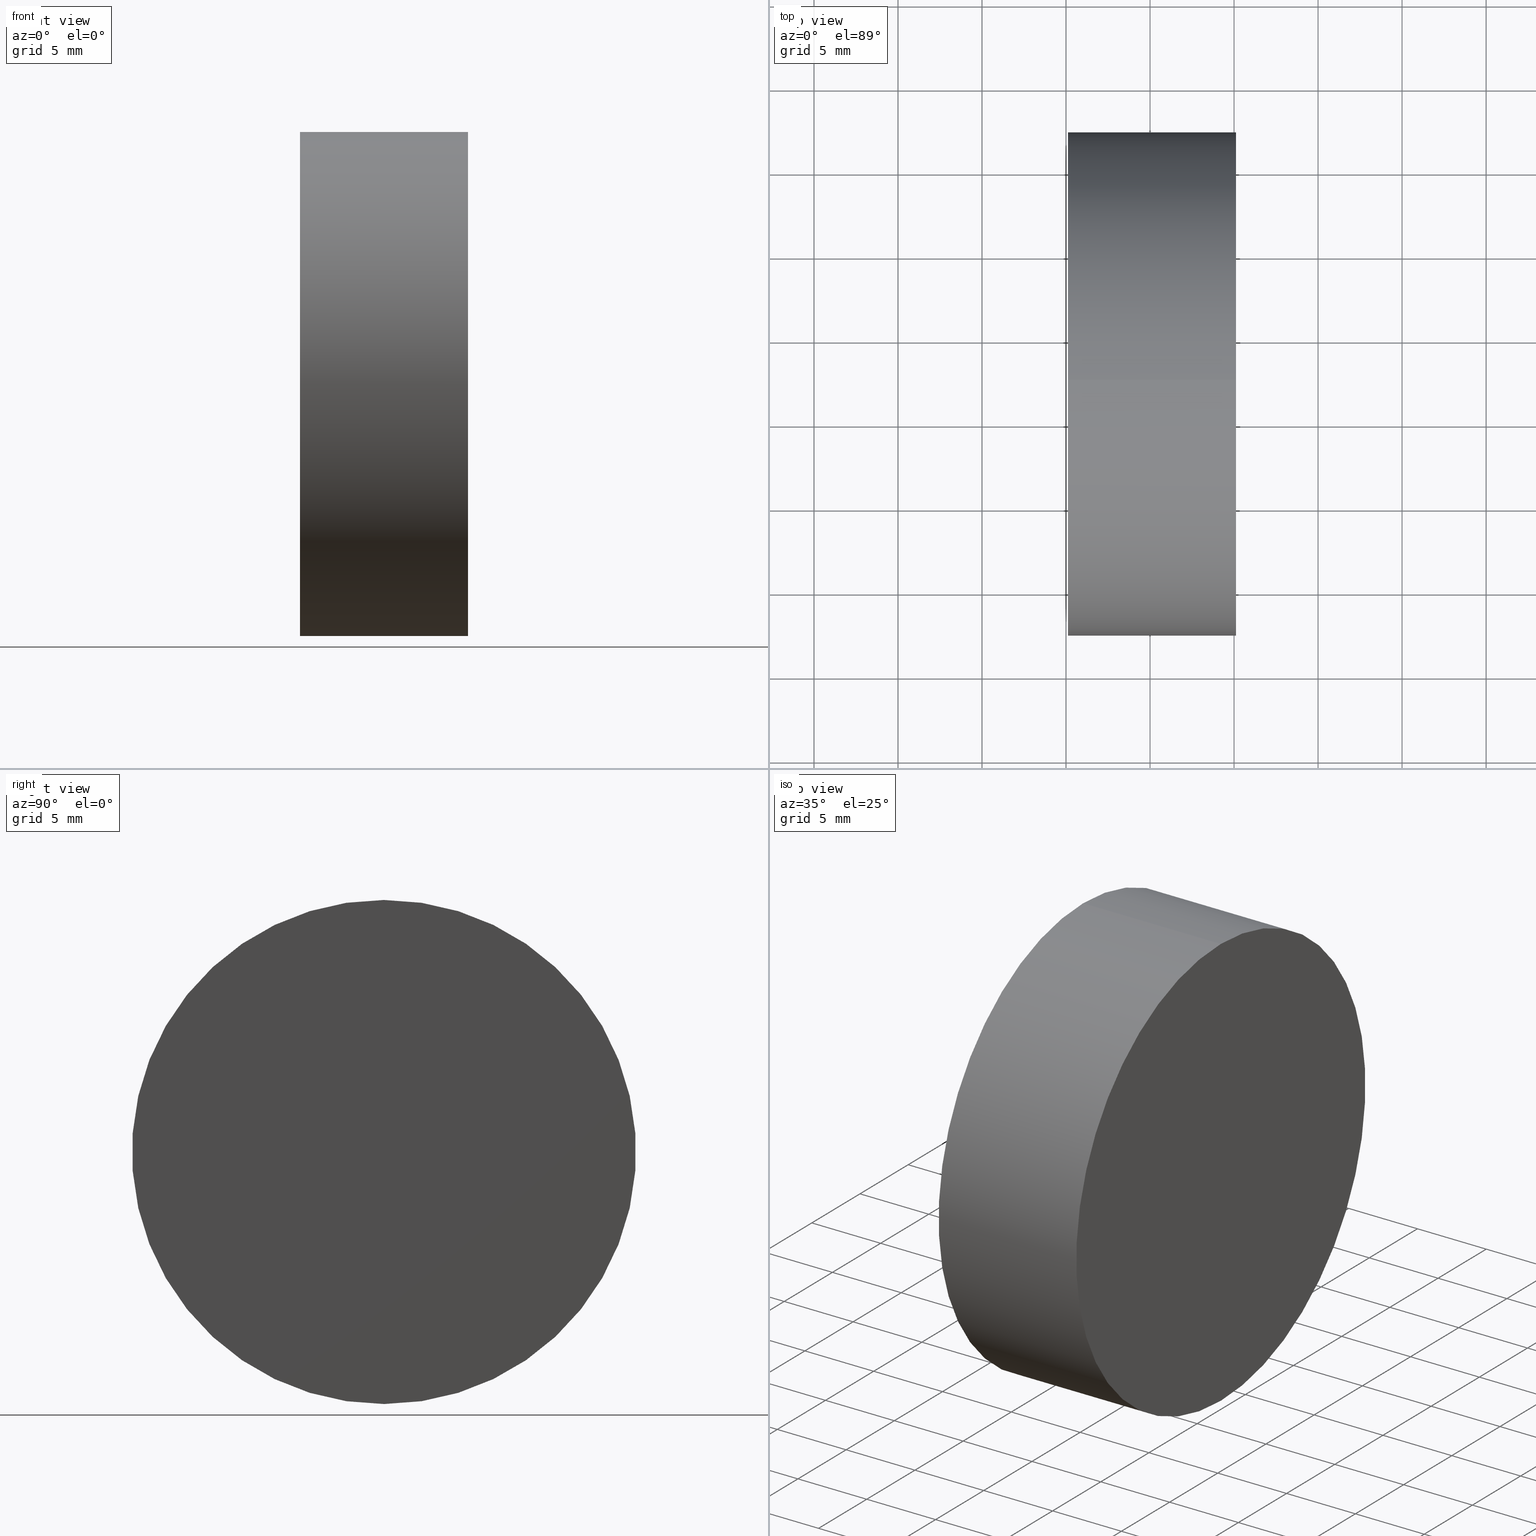
[diagram: canonical four-view strip — front | top / right | iso, engineering-drawing reading convention]
A machine part, canonical four-view strip (front | top / right | iso — engineering-drawing reading convention). The complete STEP part file that produces these views, byte-faithful:
ISO-10303-21;
HEADER;
FILE_DESCRIPTION (( 'STEP AP214' ),
    '1' );
FILE_NAME ('260074.STEP',
    '2019-07-16T03:39:00',
    ( '' ),
    ( '' ),
    'SwSTEP 2.0',
    'SolidWorks 2016',
    '' );
FILE_SCHEMA (( 'AUTOMOTIVE_DESIGN' ));
ENDSEC;

DATA;
#1 = CARTESIAN_POINT ( 'NONE',  ( 254.0008019926160300, 77.29317934901541800, 15.00000000000000000 ) ) ;
#2 = FILL_AREA_STYLE_COLOUR ( '', #11 ) ;
#3 = CARTESIAN_POINT ( 'NONE',  ( 254.0008019926160300, 77.29317934901541800, 0.0000000000000000000 ) ) ;
#4 = EDGE_LOOP ( 'NONE', ( #73, #9, #53, #97 ) ) ;
#5 = AXIS2_PLACEMENT_3D ( 'NONE', #106, #115, #88 ) ;
#6 =( LENGTH_UNIT ( ) NAMED_UNIT ( * ) SI_UNIT ( .MILLI., .METRE. ) );
#7 = APPLICATION_CONTEXT ( 'automotive_design' ) ;
#8 = STYLED_ITEM ( 'NONE', ( #85 ), #122 ) ;
#9 = ORIENTED_EDGE ( 'NONE', *, *, #25, .T. ) ;
#10 = PRODUCT_DEFINITION_FORMATION_WITH_SPECIFIED_SOURCE ( '�κ�', '', #133, .NOT_KNOWN. ) ;
#11 = COLOUR_RGB ( '',1.000000000000000000, 1.000000000000000000, 1.000000000000000000 ) ;
#12 = AXIS2_PLACEMENT_3D ( 'NONE', #105, #43, #80 ) ;
#13 = CARTESIAN_POINT ( 'NONE',  ( 260.1163036661670800, 77.29317934901541800, 0.0000000000000000000 ) ) ;
#14 = DIRECTION ( 'NONE',  ( 0.0000000000000000000, 0.0000000000000000000, 1.000000000000000000 ) ) ;
#15 = ORIENTED_EDGE ( 'NONE', *, *, #30, .F. ) ;
#16 = PRESENTATION_LAYER_ASSIGNMENT (  '', '', ( #8 ) ) ;
#17 = CARTESIAN_POINT ( 'NONE',  ( 270.1163036661670300, 77.29317934901541800, 0.0000000000000000000 ) ) ;
#18 = MANIFOLD_SOLID_BREP ( '��ת1', #117 ) ;
#19 = PLANE ( 'NONE',  #38 ) ;
#20 = CARTESIAN_POINT ( 'NONE',  ( 270.1163036661670300, 77.29317934901541800, 0.0000000000000000000 ) ) ;
#21 = DIRECTION ( 'NONE',  ( -1.000000000000000000, 0.0000000000000000000, -0.0000000000000000000 ) ) ;
#22 = CIRCLE ( 'NONE', #29, 15.00000000000000000 ) ;
#23 = ORIENTED_EDGE ( 'NONE', *, *, #87, .T. ) ;
#24 = CIRCLE ( 'NONE', #12, 15.00000000000000000 ) ;
#25 = EDGE_CURVE ( 'NONE', #130, #63, #47, .T. ) ;
#26 =( NAMED_UNIT ( * ) PLANE_ANGLE_UNIT ( ) SI_UNIT ( $, .RADIAN. ) );
#27 = CARTESIAN_POINT ( 'NONE',  ( 270.1163036661670300, 77.29317934901541800, -15.00000000000000000 ) ) ;
#28 = VECTOR ( 'NONE', #132, 1000.000000000000000 ) ;
#29 = AXIS2_PLACEMENT_3D ( 'NONE', #128, #89, #107 ) ;
#30 = EDGE_CURVE ( 'NONE', #63, #41, #104, .T. ) ;
#31 = COLOUR_RGB ( '',1.000000000000000000, 1.000000000000000000, 1.000000000000000000 ) ;
#32 = CARTESIAN_POINT ( 'NONE',  ( 254.0008019926160300, 77.29317934901541800, -15.00000000000000000 ) ) ;
#33 =( NAMED_UNIT ( * ) SI_UNIT ( $, .STERADIAN. ) SOLID_ANGLE_UNIT ( ) );
#34 = SURFACE_SIDE_STYLE ('',( #70 ) ) ;
#35 = ORIENTED_EDGE ( 'NONE', *, *, #49, .T. ) ;
#36 = DIRECTION ( 'NONE',  ( -1.000000000000000000, -0.0000000000000000000, -0.0000000000000000000 ) ) ;
#37 = FILL_AREA_STYLE ('',( #64 ) ) ;
#38 = AXIS2_PLACEMENT_3D ( 'NONE', #13, #39, #114 ) ;
#39 = DIRECTION ( 'NONE',  ( 1.000000000000000000, 0.0000000000000000000, 0.0000000000000000000 ) ) ;
#40 = DIRECTION ( 'NONE',  ( -1.000000000000000000, -0.0000000000000000000, -0.0000000000000000000 ) ) ;
#41 = VERTEX_POINT ( 'NONE', #92 ) ;
#42 = CARTESIAN_POINT ( 'NONE',  ( 260.1163036661670800, 77.29317934901541800, -15.00000000000000000 ) ) ;
#43 = DIRECTION ( 'NONE',  ( -1.000000000000000000, -0.0000000000000000000, -0.0000000000000000000 ) ) ;
#44 = VECTOR ( 'NONE', #40, 1000.000000000000000 ) ;
#45 = EDGE_LOOP ( 'NONE', ( #23, #139 ) ) ;
#46 = UNCERTAINTY_MEASURE_WITH_UNIT (LENGTH_MEASURE( 1.000000000000000100E-005 ), #52, 'distance_accuracy_value', 'NONE');
#47 = LINE ( 'NONE', #32, #44 ) ;
#48 = MECHANICAL_DESIGN_GEOMETRIC_PRESENTATION_REPRESENTATION (  '', ( #8 ), #102 ) ;
#49 = EDGE_CURVE ( 'NONE', #130, #123, #24, .T. ) ;
#50 = FILL_AREA_STYLE ('',( #2 ) ) ;
#51 = ADVANCED_FACE ( 'NONE', ( #138 ), #19, .F. ) ;
#52 =( LENGTH_UNIT ( ) NAMED_UNIT ( * ) SI_UNIT ( .MILLI., .METRE. ) );
#53 = ORIENTED_EDGE ( 'NONE', *, *, #87, .F. ) ;
#54 =( NAMED_UNIT ( * ) SI_UNIT ( $, .STERADIAN. ) SOLID_ANGLE_UNIT ( ) );
#55 = DIRECTION ( 'NONE',  ( -1.000000000000000000, -0.0000000000000000000, -0.0000000000000000000 ) ) ;
#56 = DIRECTION ( 'NONE',  ( 1.000000000000000000, 0.0000000000000000000, 0.0000000000000000000 ) ) ;
#57 = SURFACE_STYLE_FILL_AREA ( #37 ) ;
#58 = AXIS2_PLACEMENT_3D ( 'NONE', #20, #55, #95 ) ;
#59 = ORIENTED_EDGE ( 'NONE', *, *, #140, .F. ) ;
#60 = PRODUCT_DEFINITION_SHAPE ( 'NONE', 'NONE',  #99 ) ;
#61 = CARTESIAN_POINT ( 'NONE',  ( 0.0000000000000000000, 0.0000000000000000000, 0.0000000000000000000 ) ) ;
#62 = DIRECTION ( 'NONE',  ( 0.0000000000000000000, 0.0000000000000000000, 1.000000000000000000 ) ) ;
#63 = VERTEX_POINT ( 'NONE', #42 ) ;
#64 = FILL_AREA_STYLE_COLOUR ( '', #31 ) ;
#65 =( NAMED_UNIT ( * ) PLANE_ANGLE_UNIT ( ) SI_UNIT ( $, .RADIAN. ) );
#66 = APPLICATION_PROTOCOL_DEFINITION ( 'draft international standard', 'automotive_design', 1998, #137 ) ;
#67 = PRESENTATION_STYLE_ASSIGNMENT (( #83 ) ) ;
#68 =( GEOMETRIC_REPRESENTATION_CONTEXT ( 3 ) GLOBAL_UNCERTAINTY_ASSIGNED_CONTEXT ( ( #82 ) ) GLOBAL_UNIT_ASSIGNED_CONTEXT ( ( #111, #135, #96 ) ) REPRESENTATION_CONTEXT ( 'NONE', 'WORKASPACE' ) );
#69 = LINE ( 'NONE', #1, #28 ) ;
#70 = SURFACE_STYLE_FILL_AREA ( #50 ) ;
#71 = CYLINDRICAL_SURFACE ( 'NONE', #72, 15.00000000000000000 ) ;
#72 = AXIS2_PLACEMENT_3D ( 'NONE', #3, #36, #14 ) ;
#73 = ORIENTED_EDGE ( 'NONE', *, *, #140, .T. ) ;
#74 = AXIS2_PLACEMENT_3D ( 'NONE', #91, #129, #62 ) ;
#75 = CARTESIAN_POINT ( 'NONE',  ( 270.1163036661670300, 77.29317934901541800, 15.00000000000000000 ) ) ;
#76 = FACE_OUTER_BOUND ( 'NONE', #4, .T. ) ;
#77 = SURFACE_SIDE_STYLE ('',( #57 ) ) ;
#78 = ORIENTED_EDGE ( 'NONE', *, *, #25, .F. ) ;
#79 = PRODUCT_RELATED_PRODUCT_CATEGORY ( 'part', '', ( #133 ) ) ;
#80 = DIRECTION ( 'NONE',  ( 0.0000000000000000000, 0.0000000000000000000, 1.000000000000000000 ) ) ;
#81 = ADVANCED_FACE ( 'NONE', ( #76 ), #71, .T. ) ;
#82 = UNCERTAINTY_MEASURE_WITH_UNIT (LENGTH_MEASURE( 1.000000000000000100E-005 ), #111, 'distance_accuracy_value', 'NONE');
#83 = SURFACE_STYLE_USAGE ( .BOTH. , #34 ) ;
#84 = ORIENTED_EDGE ( 'NONE', *, *, #49, .F. ) ;
#85 = PRESENTATION_STYLE_ASSIGNMENT (( #110 ) ) ;
#86 = EDGE_LOOP ( 'NONE', ( #59, #84 ) ) ;
#87 = EDGE_CURVE ( 'NONE', #41, #63, #22, .T. ) ;
#88 = DIRECTION ( 'NONE',  ( 0.0000000000000000000, 0.0000000000000000000, 1.000000000000000000 ) ) ;
#89 = DIRECTION ( 'NONE',  ( -1.000000000000000000, -0.0000000000000000000, -0.0000000000000000000 ) ) ;
#90 = UNCERTAINTY_MEASURE_WITH_UNIT (LENGTH_MEASURE( 1.000000000000000100E-005 ), #6, 'distance_accuracy_value', 'NONE');
#91 = CARTESIAN_POINT ( 'NONE',  ( 254.0008019926160300, 77.29317934901541800, 0.0000000000000000000 ) ) ;
#92 = CARTESIAN_POINT ( 'NONE',  ( 260.1163036661670800, 77.29317934901541800, 15.00000000000000000 ) ) ;
#93 = APPLICATION_PROTOCOL_DEFINITION ( 'draft international standard', 'automotive_design', 1998, #7 ) ;
#94 = CIRCLE ( 'NONE', #58, 15.00000000000000000 ) ;
#95 = DIRECTION ( 'NONE',  ( 0.0000000000000000000, 0.0000000000000000000, 1.000000000000000000 ) ) ;
#96 =( NAMED_UNIT ( * ) SI_UNIT ( $, .STERADIAN. ) SOLID_ANGLE_UNIT ( ) );
#97 = ORIENTED_EDGE ( 'NONE', *, *, #100, .F. ) ;
#98 = FACE_OUTER_BOUND ( 'NONE', #86, .T. ) ;
#99 = PRODUCT_DEFINITION ( 'δ֪', '', #10, #124 ) ;
#100 = EDGE_CURVE ( 'NONE', #123, #41, #69, .T. ) ;
#101 = SHAPE_DEFINITION_REPRESENTATION ( #60, #122 ) ;
#102 =( GEOMETRIC_REPRESENTATION_CONTEXT ( 3 ) GLOBAL_UNCERTAINTY_ASSIGNED_CONTEXT ( ( #90 ) ) GLOBAL_UNIT_ASSIGNED_CONTEXT ( ( #6, #65, #54 ) ) REPRESENTATION_CONTEXT ( 'NONE', 'WORKASPACE' ) );
#103 = STYLED_ITEM ( 'NONE', ( #67 ), #18 ) ;
#104 = CIRCLE ( 'NONE', #5, 15.00000000000000000 ) ;
#105 = CARTESIAN_POINT ( 'NONE',  ( 270.1163036661670300, 77.29317934901541800, 0.0000000000000000000 ) ) ;
#106 = CARTESIAN_POINT ( 'NONE',  ( 260.1163036661670800, 77.29317934901541800, 0.0000000000000000000 ) ) ;
#107 = DIRECTION ( 'NONE',  ( 0.0000000000000000000, 0.0000000000000000000, 1.000000000000000000 ) ) ;
#108 = ADVANCED_FACE ( 'NONE', ( #125 ), #134, .T. ) ;
#109 = EDGE_LOOP ( 'NONE', ( #78, #35, #112, #15 ) ) ;
#110 = SURFACE_STYLE_USAGE ( .BOTH. , #77 ) ;
#111 =( LENGTH_UNIT ( ) NAMED_UNIT ( * ) SI_UNIT ( .MILLI., .METRE. ) );
#112 = ORIENTED_EDGE ( 'NONE', *, *, #100, .T. ) ;
#113 = PRESENTATION_LAYER_ASSIGNMENT (  '', '', ( #103 ) ) ;
#114 = DIRECTION ( 'NONE',  ( 0.0000000000000000000, 0.0000000000000000000, -1.000000000000000000 ) ) ;
#115 = DIRECTION ( 'NONE',  ( -1.000000000000000000, -0.0000000000000000000, -0.0000000000000000000 ) ) ;
#116 = PLANE ( 'NONE',  #126 ) ;
#117 = CLOSED_SHELL ( 'NONE', ( #81, #131, #108, #51 ) ) ;
#118 = MECHANICAL_DESIGN_GEOMETRIC_PRESENTATION_REPRESENTATION (  '', ( #103 ), #127 ) ;
#119 = DIRECTION ( 'NONE',  ( -0.0000000000000000000, 0.0000000000000000000, 1.000000000000000000 ) ) ;
#120 = DIRECTION ( 'NONE',  ( 0.0000000000000000000, 0.0000000000000000000, 1.000000000000000000 ) ) ;
#121 = PRODUCT_CONTEXT ( 'NONE', #7, 'mechanical' ) ;
#122 = ADVANCED_BREP_SHAPE_REPRESENTATION ( '260074', ( #18, #136 ), #68 ) ;
#123 = VERTEX_POINT ( 'NONE', #75 ) ;
#124 = PRODUCT_DEFINITION_CONTEXT ( 'detailed design', #137, 'design' ) ;
#125 = FACE_OUTER_BOUND ( 'NONE', #109, .T. ) ;
#126 = AXIS2_PLACEMENT_3D ( 'NONE', #17, #21, #119 ) ;
#127 =( GEOMETRIC_REPRESENTATION_CONTEXT ( 3 ) GLOBAL_UNCERTAINTY_ASSIGNED_CONTEXT ( ( #46 ) ) GLOBAL_UNIT_ASSIGNED_CONTEXT ( ( #52, #26, #33 ) ) REPRESENTATION_CONTEXT ( 'NONE', 'WORKASPACE' ) );
#128 = CARTESIAN_POINT ( 'NONE',  ( 260.1163036661670800, 77.29317934901541800, 0.0000000000000000000 ) ) ;
#129 = DIRECTION ( 'NONE',  ( -1.000000000000000000, -0.0000000000000000000, -0.0000000000000000000 ) ) ;
#130 = VERTEX_POINT ( 'NONE', #27 ) ;
#131 = ADVANCED_FACE ( 'NONE', ( #98 ), #116, .F. ) ;
#132 = DIRECTION ( 'NONE',  ( -1.000000000000000000, -0.0000000000000000000, -0.0000000000000000000 ) ) ;
#133 = PRODUCT ( '260074', '260074', '', ( #121 ) ) ;
#134 = CYLINDRICAL_SURFACE ( 'NONE', #74, 15.00000000000000000 ) ;
#135 =( NAMED_UNIT ( * ) PLANE_ANGLE_UNIT ( ) SI_UNIT ( $, .RADIAN. ) );
#136 = AXIS2_PLACEMENT_3D ( 'NONE', #61, #120, #56 ) ;
#137 = APPLICATION_CONTEXT ( 'automotive_design' ) ;
#138 = FACE_OUTER_BOUND ( 'NONE', #45, .T. ) ;
#139 = ORIENTED_EDGE ( 'NONE', *, *, #30, .T. ) ;
#140 = EDGE_CURVE ( 'NONE', #123, #130, #94, .T. ) ;
ENDSEC;
END-ISO-10303-21;
